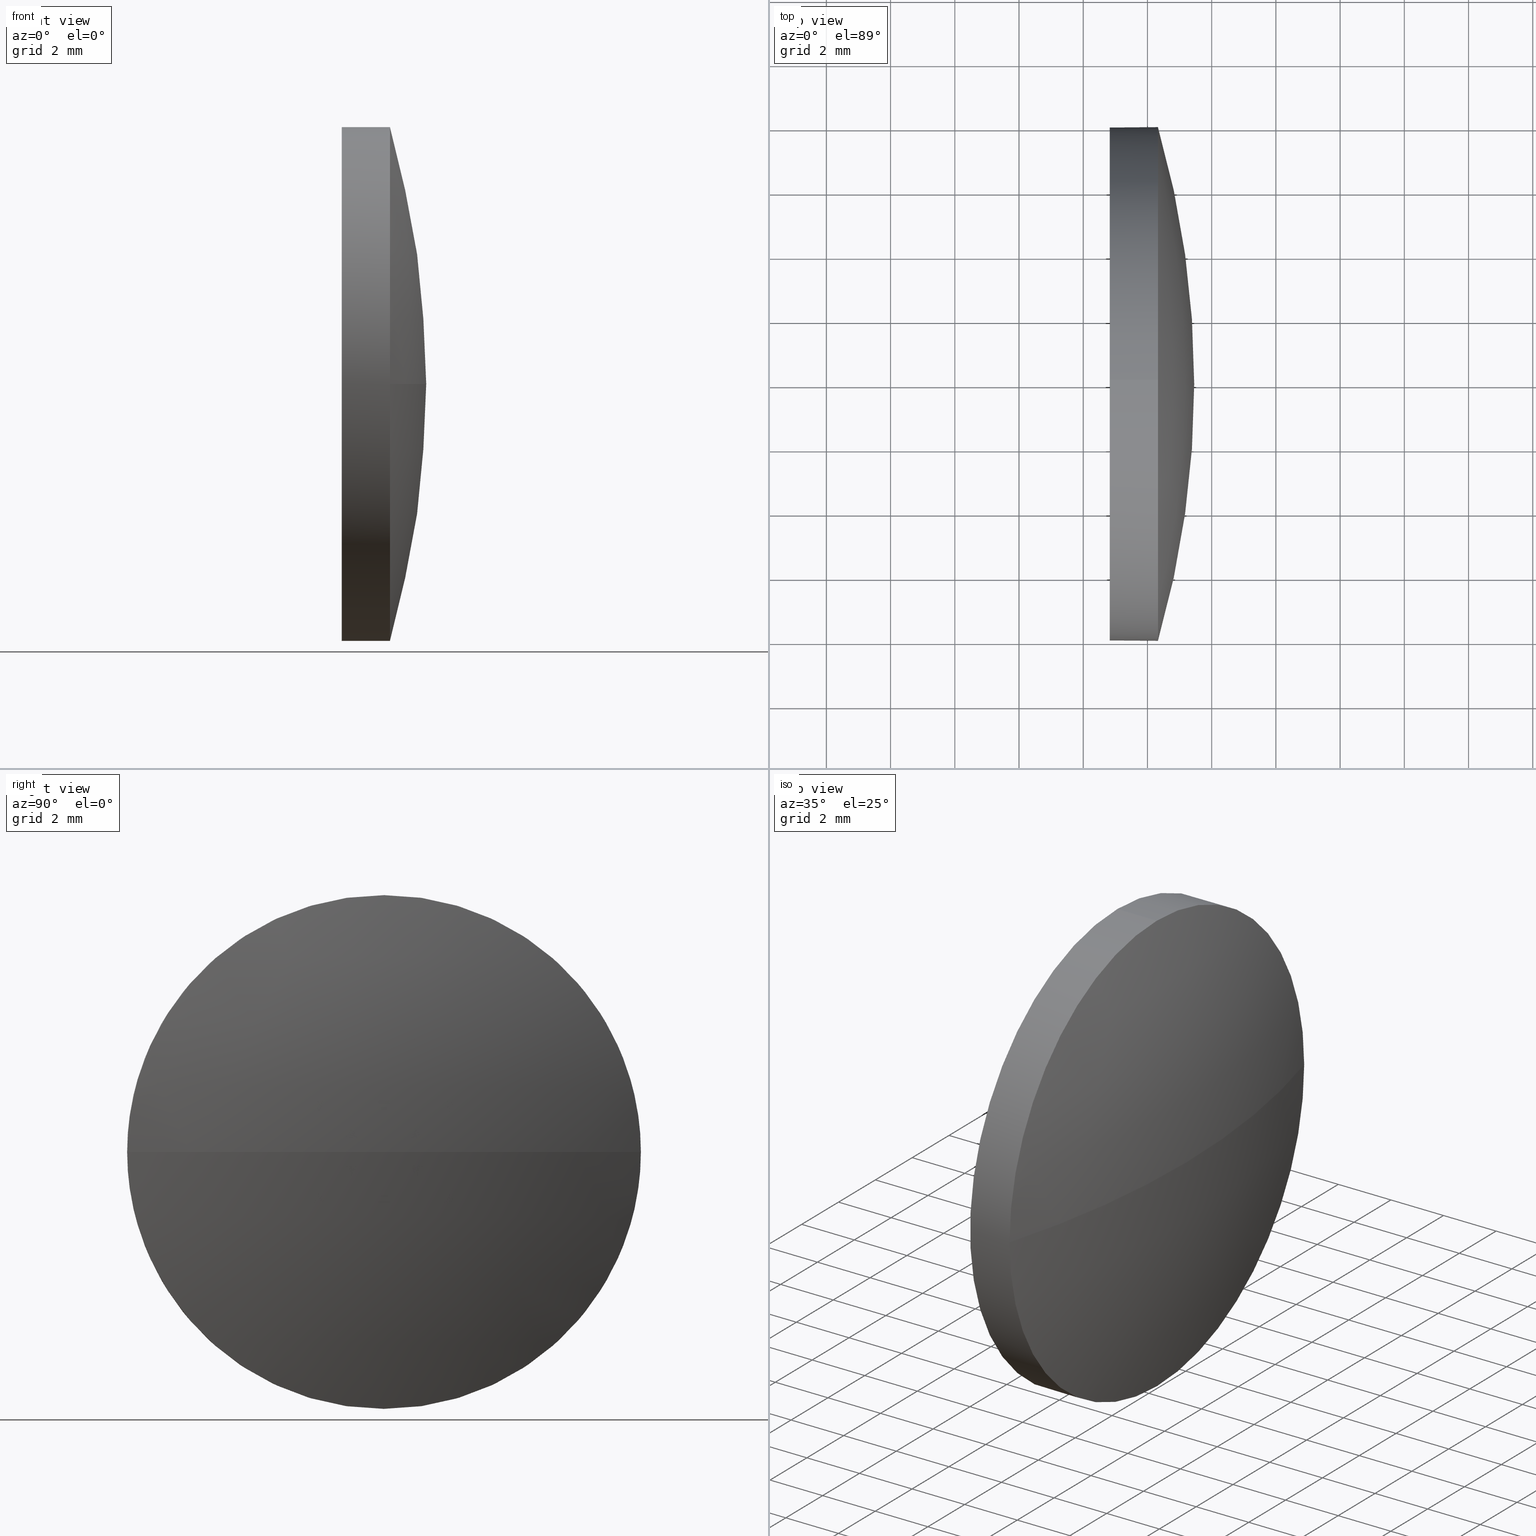
[diagram: canonical four-view strip — front | top / right | iso, engineering-drawing reading convention]
A machine part, canonical four-view strip (front | top / right | iso — engineering-drawing reading convention). The complete STEP part file that produces these views, byte-faithful:
ISO-10303-21;
HEADER;
FILE_DESCRIPTION (( 'STEP AP214' ),
    '1' );
FILE_NAME ('100372.STEP',
    '2019-06-04T06:27:21',
    ( '' ),
    ( '' ),
    'SwSTEP 2.0',
    'SolidWorks 2016',
    '' );
FILE_SCHEMA (( 'AUTOMOTIVE_DESIGN' ));
ENDSEC;

DATA;
#1 = AXIS2_PLACEMENT_3D ( 'NONE', #50, #64, #15 ) ;
#2 = SURFACE_STYLE_FILL_AREA ( #20 ) ;
#3 = PRODUCT_DEFINITION_CONTEXT ( 'detailed design', #161, 'design' ) ;
#4 = EDGE_LOOP ( 'NONE', ( #90, #133, #143, #179 ) ) ;
#5 = DIRECTION ( 'NONE',  ( 0.0000000000000000000, 0.0000000000000000000, 1.000000000000000000 ) ) ;
#6 = STYLED_ITEM ( 'NONE', ( #142 ), #69 ) ;
#7 = VERTEX_POINT ( 'NONE', #86 ) ;
#8 = DIRECTION ( 'NONE',  ( 0.0000000000000000000, 0.0000000000000000000, 1.000000000000000000 ) ) ;
#9 =( NAMED_UNIT ( * ) SI_UNIT ( $, .STERADIAN. ) SOLID_ANGLE_UNIT ( ) );
#10 = EDGE_LOOP ( 'NONE', ( #16, #84, #155, #117, #18 ) ) ;
#11 = EDGE_CURVE ( 'NONE', #184, #30, #98, .T. ) ;
#12 = PRODUCT_DEFINITION_FORMATION_WITH_SPECIFIED_SOURCE ( '�κ�', '', #134, .NOT_KNOWN. ) ;
#13 = ORIENTED_EDGE ( 'NONE', *, *, #75, .F. ) ;
#14 = CARTESIAN_POINT ( 'NONE',  ( 608.8264614584882100, 205.9704387826813600, -7.999999999999979600 ) ) ;
#15 = DIRECTION ( 'NONE',  ( 0.0000000000000000000, 0.0000000000000000000, 1.000000000000000000 ) ) ;
#16 = ORIENTED_EDGE ( 'NONE', *, *, #11, .F. ) ;
#17 = CARTESIAN_POINT ( 'NONE',  ( 611.4564614584882100, 205.9704387826815000, 0.0000000000000000000 ) ) ;
#18 = ORIENTED_EDGE ( 'NONE', *, *, #82, .F. ) ;
#19 = PRESENTATION_LAYER_ASSIGNMENT (  '', '', ( #6 ) ) ;
#20 = FILL_AREA_STYLE ('',( #177 ) ) ;
#21 = SPHERICAL_SURFACE ( 'NONE', #154, 28.88358407079649100 ) ;
#22 = EDGE_LOOP ( 'NONE', ( #13, #79, #91, #72 ) ) ;
#23 = DIRECTION ( 'NONE',  ( 0.0000000000000000000, 0.0000000000000000000, 1.000000000000000000 ) ) ;
#24 =( GEOMETRIC_REPRESENTATION_CONTEXT ( 3 ) GLOBAL_UNCERTAINTY_ASSIGNED_CONTEXT ( ( #35 ) ) GLOBAL_UNIT_ASSIGNED_CONTEXT ( ( #141, #57, #9 ) ) REPRESENTATION_CONTEXT ( 'NONE', 'WORKASPACE' ) );
#25 = CIRCLE ( 'NONE', #120, 7.999999999999979600 ) ;
#26 = MECHANICAL_DESIGN_GEOMETRIC_PRESENTATION_REPRESENTATION (  '', ( #6 ), #39 ) ;
#27 = DIRECTION ( 'NONE',  ( 0.0000000000000000000, 0.0000000000000000000, 1.000000000000000000 ) ) ;
#28 = CIRCLE ( 'NONE', #107, 7.999999999999979600 ) ;
#29 = PRESENTATION_LAYER_ASSIGNMENT (  '', '', ( #185 ) ) ;
#30 = VERTEX_POINT ( 'NONE', #14 ) ;
#31 = DIRECTION ( 'NONE',  ( 0.0000000000000000000, -1.000000000000000000, -1.224646799147353000E-016 ) ) ;
#32 = APPLICATION_PROTOCOL_DEFINITION ( 'draft international standard', 'automotive_design', 1998, #161 ) ;
#33 = DIRECTION ( 'NONE',  ( 0.0000000000000000000, 0.0000000000000000000, -1.000000000000000000 ) ) ;
#34 = AXIS2_PLACEMENT_3D ( 'NONE', #148, #138, #65 ) ;
#35 = UNCERTAINTY_MEASURE_WITH_UNIT (LENGTH_MEASURE( 1.000000000000000100E-005 ), #141, 'distance_accuracy_value', 'NONE');
#36 = CARTESIAN_POINT ( 'NONE',  ( 610.3264614584882100, 205.9704387826813600, -7.999999999999979600 ) ) ;
#37 = FACE_OUTER_BOUND ( 'NONE', #10, .T. ) ;
#38 = PRODUCT_DEFINITION ( 'δ֪', '', #12, #3 ) ;
#39 =( GEOMETRIC_REPRESENTATION_CONTEXT ( 3 ) GLOBAL_UNCERTAINTY_ASSIGNED_CONTEXT ( ( #93 ) ) GLOBAL_UNIT_ASSIGNED_CONTEXT ( ( #59, #152, #97 ) ) REPRESENTATION_CONTEXT ( 'NONE', 'WORKASPACE' ) );
#40 = SHAPE_DEFINITION_REPRESENTATION ( #157, #124 ) ;
#41 =( NAMED_UNIT ( * ) PLANE_ANGLE_UNIT ( ) SI_UNIT ( $, .RADIAN. ) );
#42 = ORIENTED_EDGE ( 'NONE', *, *, #66, .T. ) ;
#43 = AXIS2_PLACEMENT_3D ( 'NONE', #63, #116, #130 ) ;
#44 = SURFACE_SIDE_STYLE ('',( #71 ) ) ;
#45 = ADVANCED_FACE ( 'NONE', ( #147 ), #172, .T. ) ;
#46 = EDGE_CURVE ( 'NONE', #81, #128, #85, .T. ) ;
#47 = CARTESIAN_POINT ( 'NONE',  ( 606.5455140538709900, 205.9704387826813600, 7.999999999999979600 ) ) ;
#48 = CYLINDRICAL_SURFACE ( 'NONE', #118, 7.999999999999979600 ) ;
#49 = DIRECTION ( 'NONE',  ( -1.000000000000000000, -0.0000000000000000000, -0.0000000000000000000 ) ) ;
#50 = CARTESIAN_POINT ( 'NONE',  ( 608.8264614584882100, 205.9704387826813600, 0.0000000000000000000 ) ) ;
#51 = FACE_OUTER_BOUND ( 'NONE', #114, .T. ) ;
#52 = PLANE ( 'NONE',  #34 ) ;
#53 = EDGE_CURVE ( 'NONE', #160, #162, #136, .T. ) ;
#54 =( NAMED_UNIT ( * ) SI_UNIT ( $, .STERADIAN. ) SOLID_ANGLE_UNIT ( ) );
#55 = ORIENTED_EDGE ( 'NONE', *, *, #186, .T. ) ;
#56 = EDGE_CURVE ( 'NONE', #184, #7, #25, .T. ) ;
#57 =( NAMED_UNIT ( * ) PLANE_ANGLE_UNIT ( ) SI_UNIT ( $, .RADIAN. ) );
#58 = DIRECTION ( 'NONE',  ( 0.0000000000000000000, 0.0000000000000000000, 1.000000000000000000 ) ) ;
#59 =( LENGTH_UNIT ( ) NAMED_UNIT ( * ) SI_UNIT ( .MILLI., .METRE. ) );
#60 = CIRCLE ( 'NONE', #183, 7.999999999999979600 ) ;
#61 = PRESENTATION_STYLE_ASSIGNMENT (( #163 ) ) ;
#62 = ORIENTED_EDGE ( 'NONE', *, *, #132, .T. ) ;
#63 = CARTESIAN_POINT ( 'NONE',  ( 0.0000000000000000000, 0.0000000000000000000, 0.0000000000000000000 ) ) ;
#64 = DIRECTION ( 'NONE',  ( -1.000000000000000000, -0.0000000000000000000, -0.0000000000000000000 ) ) ;
#65 = DIRECTION ( 'NONE',  ( 0.0000000000000000000, 0.0000000000000000000, -1.000000000000000000 ) ) ;
#66 = EDGE_CURVE ( 'NONE', #128, #184, #60, .T. ) ;
#67 = FACE_OUTER_BOUND ( 'NONE', #22, .T. ) ;
#68 = DIRECTION ( 'NONE',  ( -1.000000000000000000, -0.0000000000000000000, -0.0000000000000000000 ) ) ;
#69 = MANIFOLD_SOLID_BREP ( '��ת1', #125 ) ;
#70 = PRODUCT_CONTEXT ( 'NONE', #111, 'mechanical' ) ;
#71 = SURFACE_STYLE_FILL_AREA ( #153 ) ;
#72 = ORIENTED_EDGE ( 'NONE', *, *, #176, .F. ) ;
#73 = CARTESIAN_POINT ( 'NONE',  ( 606.5455140538709900, 205.9704387826813600, 0.0000000000000000000 ) ) ;
#74 = ADVANCED_FACE ( 'NONE', ( #37 ), #48, .T. ) ;
#75 = EDGE_CURVE ( 'NONE', #81, #7, #171, .T. ) ;
#76 = AXIS2_PLACEMENT_3D ( 'NONE', #137, #149, #115 ) ;
#77 = ORIENTED_EDGE ( 'NONE', *, *, #186, .F. ) ;
#78 = DIRECTION ( 'NONE',  ( 0.0000000000000000000, -1.224646799147353200E-016, 1.000000000000000000 ) ) ;
#79 = ORIENTED_EDGE ( 'NONE', *, *, #46, .T. ) ;
#80 = DIRECTION ( 'NONE',  ( -1.000000000000000000, 0.0000000000000000000, 0.0000000000000000000 ) ) ;
#81 = VERTEX_POINT ( 'NONE', #17 ) ;
#82 = EDGE_CURVE ( 'NONE', #30, #162, #139, .T. ) ;
#83 = DIRECTION ( 'NONE',  ( 0.0000000000000000000, 0.0000000000000000000, 1.000000000000000000 ) ) ;
#84 = ORIENTED_EDGE ( 'NONE', *, *, #56, .T. ) ;
#85 = CIRCLE ( 'NONE', #100, 28.88358407079649800 ) ;
#86 = CARTESIAN_POINT ( 'NONE',  ( 610.3264614584882100, 197.9704387826815300, 0.0000000000000000000 ) ) ;
#87 = DIRECTION ( 'NONE',  ( 0.0000000000000000000, -1.000000000000000000, 0.0000000000000000000 ) ) ;
#88 = AXIS2_PLACEMENT_3D ( 'NONE', #119, #33, #80 ) ;
#89 = UNCERTAINTY_MEASURE_WITH_UNIT (LENGTH_MEASURE( 1.000000000000000100E-005 ), #151, 'distance_accuracy_value', 'NONE');
#90 = ORIENTED_EDGE ( 'NONE', *, *, #46, .F. ) ;
#91 = ORIENTED_EDGE ( 'NONE', *, *, #132, .F. ) ;
#92 = VECTOR ( 'NONE', #182, 1000.000000000000000 ) ;
#93 = UNCERTAINTY_MEASURE_WITH_UNIT (LENGTH_MEASURE( 1.000000000000000100E-005 ), #59, 'distance_accuracy_value', 'NONE');
#94 = COLOUR_RGB ( '',1.000000000000000000, 1.000000000000000000, 1.000000000000000000 ) ;
#95 = DIRECTION ( 'NONE',  ( -1.000000000000000000, -0.0000000000000000000, -0.0000000000000000000 ) ) ;
#96 = SURFACE_SIDE_STYLE ('',( #2 ) ) ;
#97 =( NAMED_UNIT ( * ) SI_UNIT ( $, .STERADIAN. ) SOLID_ANGLE_UNIT ( ) );
#98 = LINE ( 'NONE', #168, #92 ) ;
#99 = DIRECTION ( 'NONE',  ( 0.0000000000000000000, 0.0000000000000000000, 1.000000000000000000 ) ) ;
#100 = AXIS2_PLACEMENT_3D ( 'NONE', #158, #78, #31 ) ;
#101 = CARTESIAN_POINT ( 'NONE',  ( 610.3264614584882100, 205.9704387826813600, 0.0000000000000000000 ) ) ;
#102 = DIRECTION ( 'NONE',  ( -1.000000000000000000, -0.0000000000000000000, -0.0000000000000000000 ) ) ;
#103 = VECTOR ( 'NONE', #135, 1000.000000000000000 ) ;
#104 = ORIENTED_EDGE ( 'NONE', *, *, #53, .F. ) ;
#105 = CARTESIAN_POINT ( 'NONE',  ( 610.3264614584882100, 213.9704387826813600, 9.797174393178630400E-016 ) ) ;
#106 = FACE_OUTER_BOUND ( 'NONE', #167, .T. ) ;
#107 = AXIS2_PLACEMENT_3D ( 'NONE', #127, #95, #5 ) ;
#108 = DIRECTION ( 'NONE',  ( 0.0000000000000000000, -1.000000000000000000, 0.0000000000000000000 ) ) ;
#109 = AXIS2_PLACEMENT_3D ( 'NONE', #129, #164, #83 ) ;
#110 = AXIS2_PLACEMENT_3D ( 'NONE', #169, #159, #87 ) ;
#111 = APPLICATION_CONTEXT ( 'automotive_design' ) ;
#112 = CARTESIAN_POINT ( 'NONE',  ( 582.5728773876917300, 205.9704387826815000, 0.0000000000000000000 ) ) ;
#113 =( GEOMETRIC_REPRESENTATION_CONTEXT ( 3 ) GLOBAL_UNCERTAINTY_ASSIGNED_CONTEXT ( ( #89 ) ) GLOBAL_UNIT_ASSIGNED_CONTEXT ( ( #151, #41, #54 ) ) REPRESENTATION_CONTEXT ( 'NONE', 'WORKASPACE' ) );
#114 = EDGE_LOOP ( 'NONE', ( #42, #122, #77, #104, #62 ) ) ;
#115 = DIRECTION ( 'NONE',  ( 0.0000000000000000000, 0.0000000000000000000, 1.000000000000000000 ) ) ;
#116 = DIRECTION ( 'NONE',  ( 0.0000000000000000000, 0.0000000000000000000, 1.000000000000000000 ) ) ;
#117 = ORIENTED_EDGE ( 'NONE', *, *, #53, .T. ) ;
#118 = AXIS2_PLACEMENT_3D ( 'NONE', #73, #180, #58 ) ;
#119 = CARTESIAN_POINT ( 'NONE',  ( 582.5728773876917300, 205.9704387826815000, 0.0000000000000000000 ) ) ;
#120 = AXIS2_PLACEMENT_3D ( 'NONE', #170, #102, #27 ) ;
#121 = CYLINDRICAL_SURFACE ( 'NONE', #126, 7.999999999999979600 ) ;
#122 = ORIENTED_EDGE ( 'NONE', *, *, #11, .T. ) ;
#123 = CARTESIAN_POINT ( 'NONE',  ( 606.5455140538709900, 205.9704387826813600, 0.0000000000000000000 ) ) ;
#124 = ADVANCED_BREP_SHAPE_REPRESENTATION ( '100372', ( #69, #43 ), #113 ) ;
#125 = CLOSED_SHELL ( 'NONE', ( #156, #145, #45, #74, #131 ) ) ;
#126 = AXIS2_PLACEMENT_3D ( 'NONE', #123, #68, #8 ) ;
#127 = CARTESIAN_POINT ( 'NONE',  ( 608.8264614584882100, 205.9704387826813600, 0.0000000000000000000 ) ) ;
#128 = VERTEX_POINT ( 'NONE', #105 ) ;
#129 = CARTESIAN_POINT ( 'NONE',  ( 610.3264614584882100, 205.9704387826813600, 0.0000000000000000000 ) ) ;
#130 = DIRECTION ( 'NONE',  ( 1.000000000000000000, 0.0000000000000000000, 0.0000000000000000000 ) ) ;
#131 = ADVANCED_FACE ( 'NONE', ( #106 ), #52, .F. ) ;
#132 = EDGE_CURVE ( 'NONE', #160, #128, #173, .T. ) ;
#133 = ORIENTED_EDGE ( 'NONE', *, *, #75, .T. ) ;
#134 = PRODUCT ( '100372', '100372', '', ( #70 ) ) ;
#135 = DIRECTION ( 'NONE',  ( -1.000000000000000000, -0.0000000000000000000, -0.0000000000000000000 ) ) ;
#136 = LINE ( 'NONE', #47, #103 ) ;
#137 = CARTESIAN_POINT ( 'NONE',  ( 610.3264614584882100, 205.9704387826813600, 0.0000000000000000000 ) ) ;
#138 = DIRECTION ( 'NONE',  ( 1.000000000000000000, 0.0000000000000000000, 0.0000000000000000000 ) ) ;
#139 = CIRCLE ( 'NONE', #1, 7.999999999999979600 ) ;
#140 = CARTESIAN_POINT ( 'NONE',  ( 610.3264614584882100, 205.9704387826813600, 7.999999999999979600 ) ) ;
#141 =( LENGTH_UNIT ( ) NAMED_UNIT ( * ) SI_UNIT ( .MILLI., .METRE. ) );
#142 = PRESENTATION_STYLE_ASSIGNMENT (( #144 ) ) ;
#143 = ORIENTED_EDGE ( 'NONE', *, *, #56, .F. ) ;
#144 = SURFACE_STYLE_USAGE ( .BOTH. , #44 ) ;
#145 = ADVANCED_FACE ( 'NONE', ( #67 ), #21, .T. ) ;
#146 = MECHANICAL_DESIGN_GEOMETRIC_PRESENTATION_REPRESENTATION (  '', ( #185 ), #24 ) ;
#147 = FACE_OUTER_BOUND ( 'NONE', #4, .T. ) ;
#148 = CARTESIAN_POINT ( 'NONE',  ( 608.8264614584882100, 205.9704387826813600, 0.0000000000000000000 ) ) ;
#149 = DIRECTION ( 'NONE',  ( -1.000000000000000000, -0.0000000000000000000, -0.0000000000000000000 ) ) ;
#150 = APPLICATION_PROTOCOL_DEFINITION ( 'draft international standard', 'automotive_design', 1998, #111 ) ;
#151 =( LENGTH_UNIT ( ) NAMED_UNIT ( * ) SI_UNIT ( .MILLI., .METRE. ) );
#152 =( NAMED_UNIT ( * ) PLANE_ANGLE_UNIT ( ) SI_UNIT ( $, .RADIAN. ) );
#153 = FILL_AREA_STYLE ('',( #165 ) ) ;
#154 = AXIS2_PLACEMENT_3D ( 'NONE', #112, #23, #108 ) ;
#155 = ORIENTED_EDGE ( 'NONE', *, *, #176, .T. ) ;
#156 = ADVANCED_FACE ( 'NONE', ( #51 ), #121, .T. ) ;
#157 = PRODUCT_DEFINITION_SHAPE ( 'NONE', 'NONE',  #38 ) ;
#158 = CARTESIAN_POINT ( 'NONE',  ( 582.5728773876917300, 205.9704387826815000, 0.0000000000000000000 ) ) ;
#159 = DIRECTION ( 'NONE',  ( 0.0000000000000000000, 0.0000000000000000000, 1.000000000000000000 ) ) ;
#160 = VERTEX_POINT ( 'NONE', #140 ) ;
#161 = APPLICATION_CONTEXT ( 'automotive_design' ) ;
#162 = VERTEX_POINT ( 'NONE', #178 ) ;
#163 = SURFACE_STYLE_USAGE ( .BOTH. , #96 ) ;
#164 = DIRECTION ( 'NONE',  ( -1.000000000000000000, -0.0000000000000000000, -0.0000000000000000000 ) ) ;
#165 = FILL_AREA_STYLE_COLOUR ( '', #174 ) ;
#166 = CIRCLE ( 'NONE', #109, 7.999999999999979600 ) ;
#167 = EDGE_LOOP ( 'NONE', ( #55, #175 ) ) ;
#168 = CARTESIAN_POINT ( 'NONE',  ( 606.5455140538709900, 205.9704387826813600, -7.999999999999979600 ) ) ;
#169 = CARTESIAN_POINT ( 'NONE',  ( 582.5728773876917300, 205.9704387826815000, 0.0000000000000000000 ) ) ;
#170 = CARTESIAN_POINT ( 'NONE',  ( 610.3264614584882100, 205.9704387826813600, 0.0000000000000000000 ) ) ;
#171 = CIRCLE ( 'NONE', #88, 28.88358407079649800 ) ;
#172 = SPHERICAL_SURFACE ( 'NONE', #110, 28.88358407079649100 ) ;
#173 = CIRCLE ( 'NONE', #76, 7.999999999999979600 ) ;
#174 = COLOUR_RGB ( '',1.000000000000000000, 1.000000000000000000, 1.000000000000000000 ) ;
#175 = ORIENTED_EDGE ( 'NONE', *, *, #82, .T. ) ;
#176 = EDGE_CURVE ( 'NONE', #7, #160, #166, .T. ) ;
#177 = FILL_AREA_STYLE_COLOUR ( '', #94 ) ;
#178 = CARTESIAN_POINT ( 'NONE',  ( 608.8264614584882100, 205.9704387826813600, 7.999999999999979600 ) ) ;
#179 = ORIENTED_EDGE ( 'NONE', *, *, #66, .F. ) ;
#180 = DIRECTION ( 'NONE',  ( -1.000000000000000000, -0.0000000000000000000, -0.0000000000000000000 ) ) ;
#181 = PRODUCT_RELATED_PRODUCT_CATEGORY ( 'part', '', ( #134 ) ) ;
#182 = DIRECTION ( 'NONE',  ( -1.000000000000000000, -0.0000000000000000000, -0.0000000000000000000 ) ) ;
#183 = AXIS2_PLACEMENT_3D ( 'NONE', #101, #49, #99 ) ;
#184 = VERTEX_POINT ( 'NONE', #36 ) ;
#185 = STYLED_ITEM ( 'NONE', ( #61 ), #124 ) ;
#186 = EDGE_CURVE ( 'NONE', #162, #30, #28, .T. ) ;
ENDSEC;
END-ISO-10303-21;
